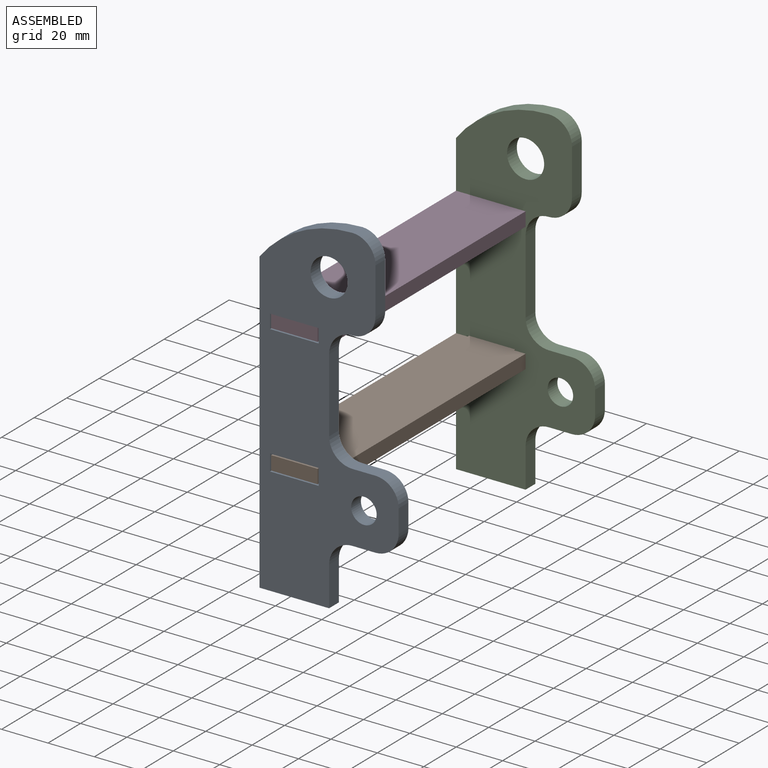
[diagram: assembled view]
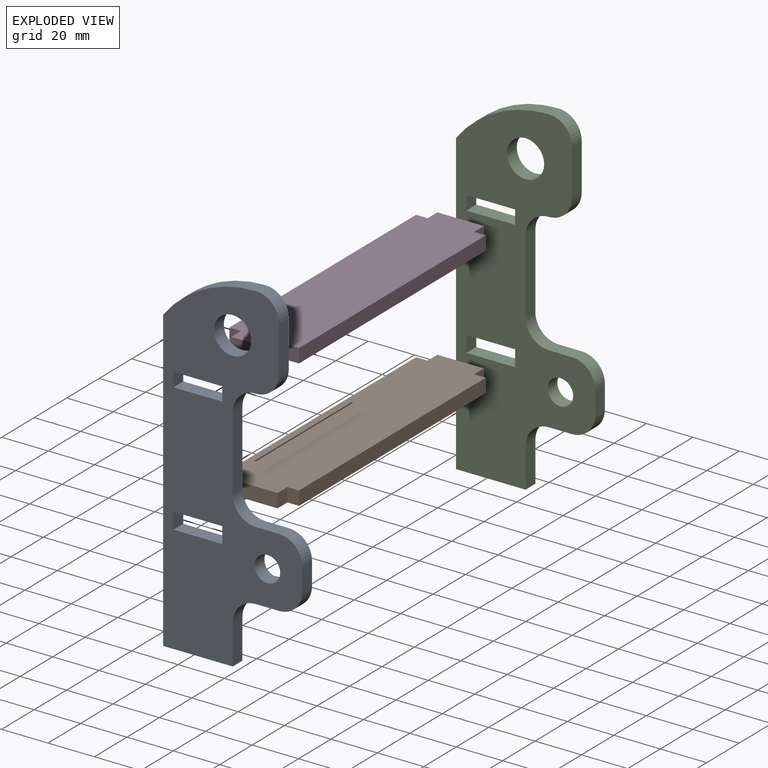
[diagram: exploded view]
GUIDED TOUR — MATED ASSEMBLY (Onshape document 54d74c129638f060a17b37b4, AutoMate assembly 54d74c129638f060a17b37b4_c15cae82bca73bbc953732e4_8736459e0497385a11a47982_default)

This assembly has 4 components, labeled P0..P3 below (a component is one placed occurrence of a part; the same part can appear more than once), held together by 3 mates. A mate is a constraint between two components; its type names the relative motion it leaves free:
  FASTENED — locks the two components together rigidly (no relative motion).
Axis/direction vectors are unit vectors and 'through' points are millimeter coordinates, both in the assembly's world frame.

MATES
  1. FASTENED "Fastened 1": P2 <-> P1, direction (0.000, 1.000, 0.000) through (-154.47, -129.19, -5.41) mm
  2. FASTENED "Fastened 3": P0 <-> P3, direction (0.000, 1.000, 0.000) through (-154.47, -250.19, 49.09) mm
  3. FASTENED "Fastened 2": P3 <-> P2, direction (0.000, 1.000, 0.000) through (-154.47, -129.19, 49.59) mm

ASSEMBLY ORDER
  1. P2 — the base component [order heuristic]
  2. P1 [order heuristic]
  3. P3 [order heuristic]
  4. P0 [order heuristic]
Order-tag legend:
  [order heuristic] — this assembly is geometrically interlocked (no collision-free removal order exists), so components are listed in mate-graph order; insertion feasibility is not verified.

Of the 4 components, 4 carry the full construction recipe — the FeatureScript program that regenerates the part's solid from scratch; the rest are supplied as boundary geometry only.
Each toured component is shown spotlighted twice — in the assembled view, then in the exploded view, where a leader line traces a displaced component back to its assembled socket (saturated green if recipe-attached, orange if geometry-only; every other component desaturated gray) — followed by its recipe or geometry summary and the mates that hold it.
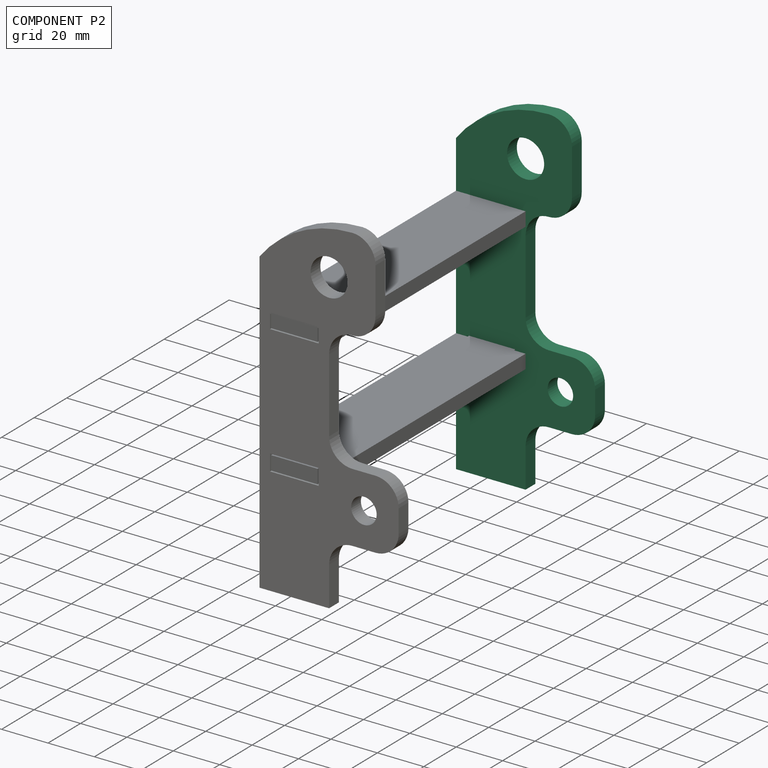
[diagram: component P2 — assembled]
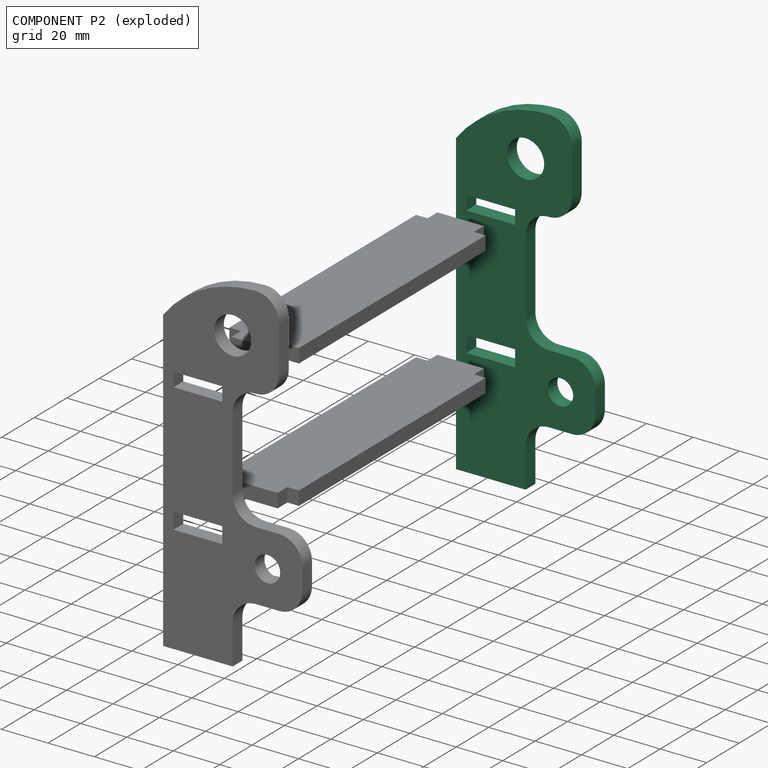
[diagram: component P2 — exploded]
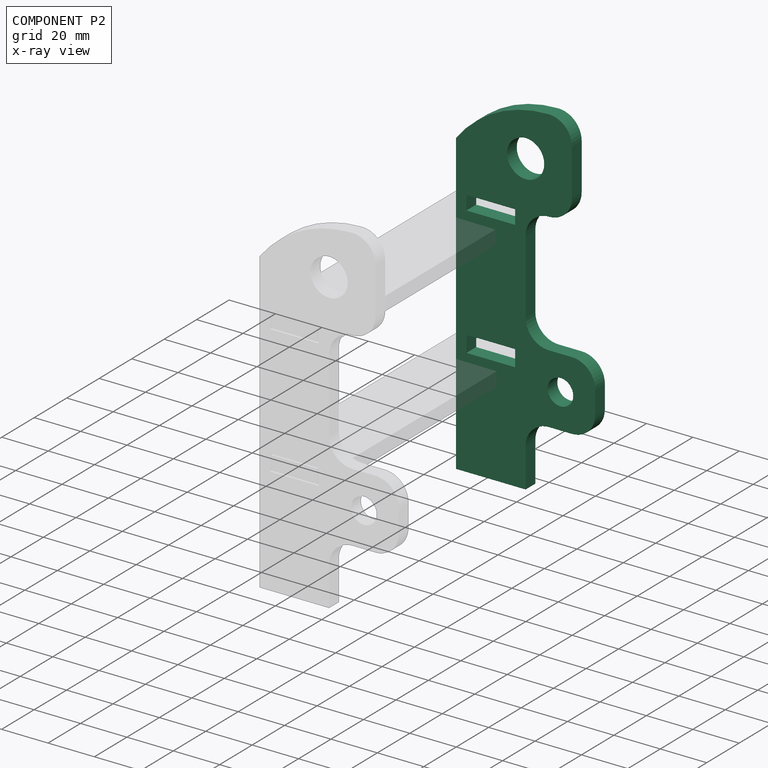
[diagram: component P2 — x-ray view]
COMPONENT P2 — same part as P0 (CADFS 00991045); its construction recipe is shown at P0.
Held by: FASTENED mate "Fastened 1" to P1; FASTENED mate "Fastened 2" to P3.
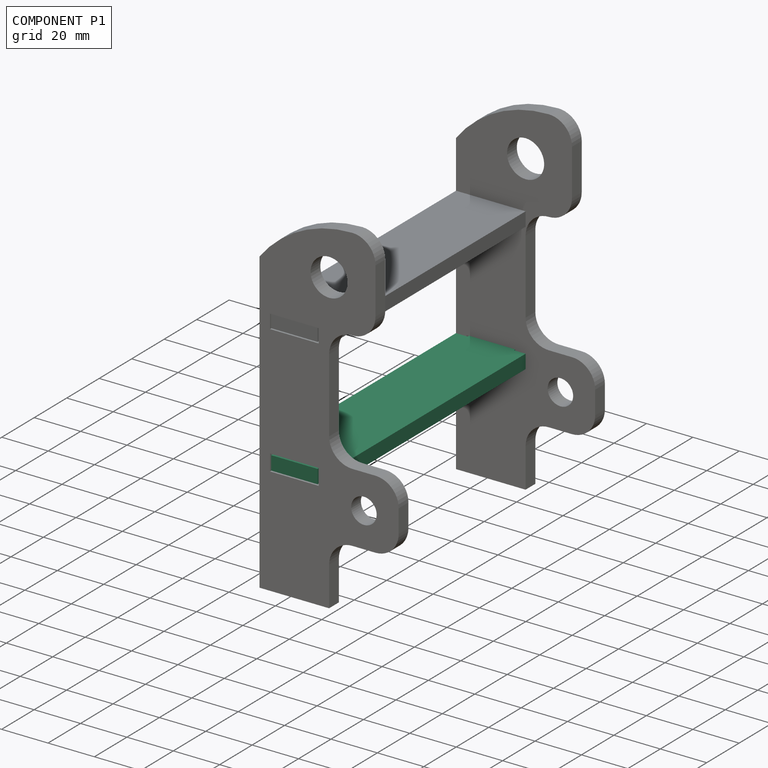
[diagram: component P1 — assembled]
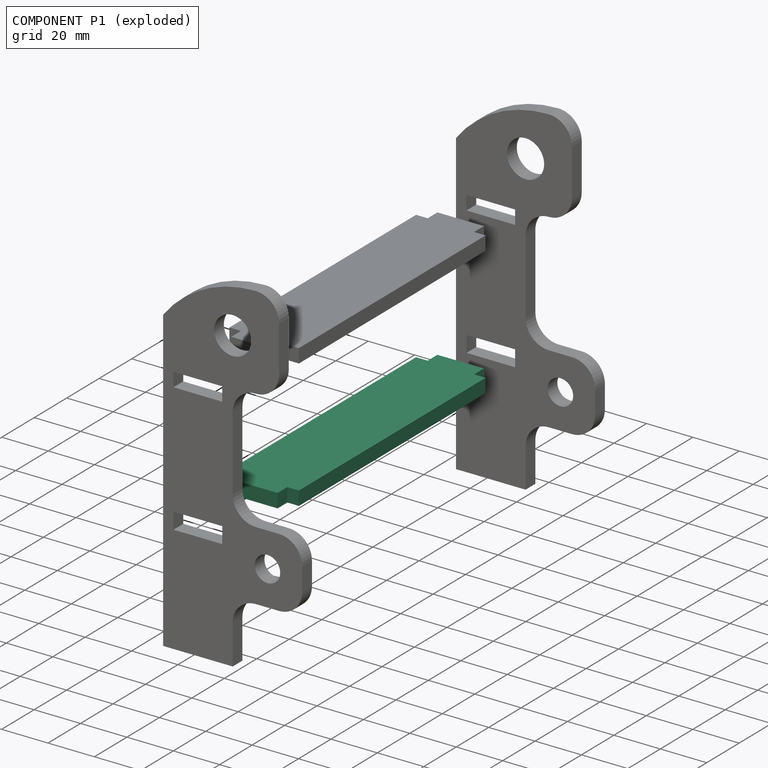
[diagram: component P1 — exploded]
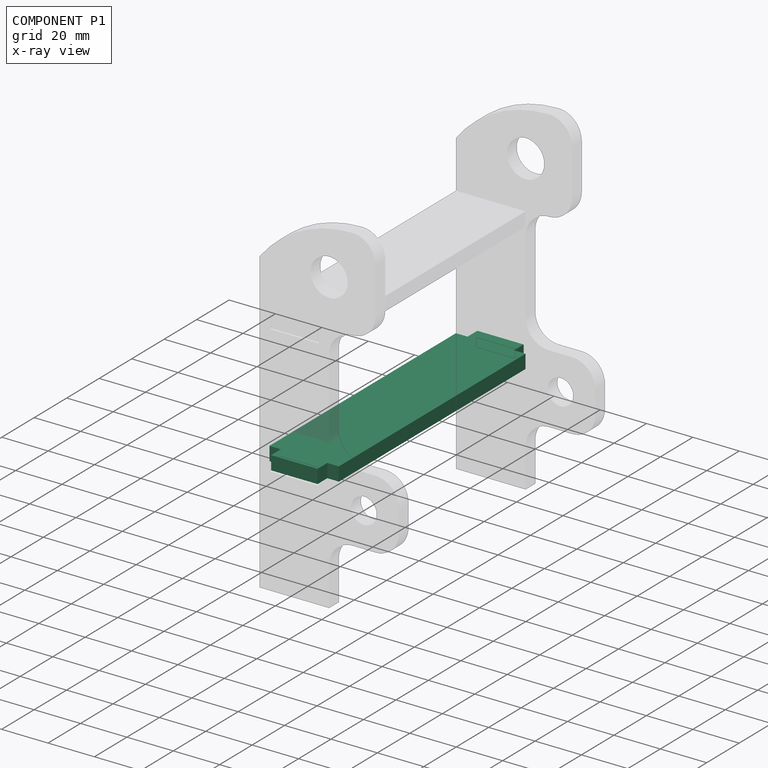
[diagram: component P1 — x-ray view]
COMPONENT P1 — recipe-attached (CADFS 00991043, mesh-verified: the recipe's output STEP matches this component's geometry to below the mesh-comparison resolution (tessellation chordal tolerance ~0.196 mm)).
Held by: FASTENED mate "Fastened 1" to P2.
Construction recipe (FeatureScript — the CAD program that rebuilds this solid; sketch coordinates are in the units given by the * unit suffixes, e.g. mm):

FeatureScript 1511;
import(path : "onshape/std/geometry.fs", version : "1511.0");
import(path : "onshape/std/common.fs", version : "1511.0");
const mm = millimeter;
const VERTEX = EntityType.VERTEX;
const EDGE = EntityType.EDGE;
const FACE = EntityType.FACE;
const BODY = EntityType.BODY;
function v(x, y){return vector(x, y);}
function OD(order){return orderDisambiguation(order);}
function OSD(set){return originalSetDisambiguation(set);}
function TD(topology){return topologyDisambiguation(topology);}
function TDD(query){return trueDependencyDisambiguation(query);}
function sQuery(a, b, c) {return sketchEntityQuery(a, b, c);}

annotation { "Feature Type Name" : "Feature", "Feature Type Description" : "" }
export const myFeature = defineFeature(function(context is Context, id is Id, definition is map)
    precondition{}
    {
        {
            var Q0;
            Q0=qCreatedBy(makeId("Top.planeOp"),FACE);
            var sketch = newSketch(context, id + "F0", { "sketchPlane" : qUnion([Q0])});
            skLineSegment(sketch, "E0.bottom", {"start": v(-34.2, -50.27) * mm, "end": v(-14.2, -50.27) * mm});
            skLineSegment(sketch, "E0.top", {"start": v(-34.2, 76.73) * mm, "end": v(-14.2, 76.73) * mm});
            skLineSegment(sketch, "E0.left", {"start": v(-39.2, -44.27) * mm, "end": v(-39.2, 70.73) * mm});
            skLineSegment(sketch, "E0.right", {"start": v(-9.2, -44.27) * mm, "end": v(-9.2, 70.73) * mm});
            skLineSegment(sketch, "E1", {"start": v(-34.2, -50.27) * mm, "end": v(-34.2, -44.27) * mm});
            skLineSegment(sketch, "E2", {"start": v(-34.2, -44.27) * mm, "end": v(-39.2, -44.27) * mm});
            skLineSegment(sketch, "E3.top", {"start": v(-39.2, 70.73) * mm, "end": v(-34.2, 70.73) * mm});
            skLineSegment(sketch, "E3.right", {"start": v(-34.2, 76.73) * mm, "end": v(-34.2, 70.73) * mm});
            skLineSegment(sketch, "E4.top", {"start": v(-9.2, 70.73) * mm, "end": v(-14.2, 70.73) * mm});
            skLineSegment(sketch, "E4.right", {"start": v(-14.2, 76.73) * mm, "end": v(-14.2, 70.73) * mm});
            skLineSegment(sketch, "E5.top", {"start": v(-9.2, -44.27) * mm, "end": v(-14.2, -44.27) * mm});
            skLineSegment(sketch, "E5.right", {"start": v(-14.2, -50.27) * mm, "end": v(-14.2, -44.27) * mm});
            skPoint(sketch, "E6.orphan", {"position": v(-39.2, -50.27) * mm});
            skSolve(sketch);
        }
        {
            var Q0;
            Q0 = qSketchRegion(id + "F0", true);
            extrude(context, id + "F1", {"entities" : qUnion([Q0]), "depth" : 6 * mm, "offsetDistance" : 25 * mm});
        }
    });
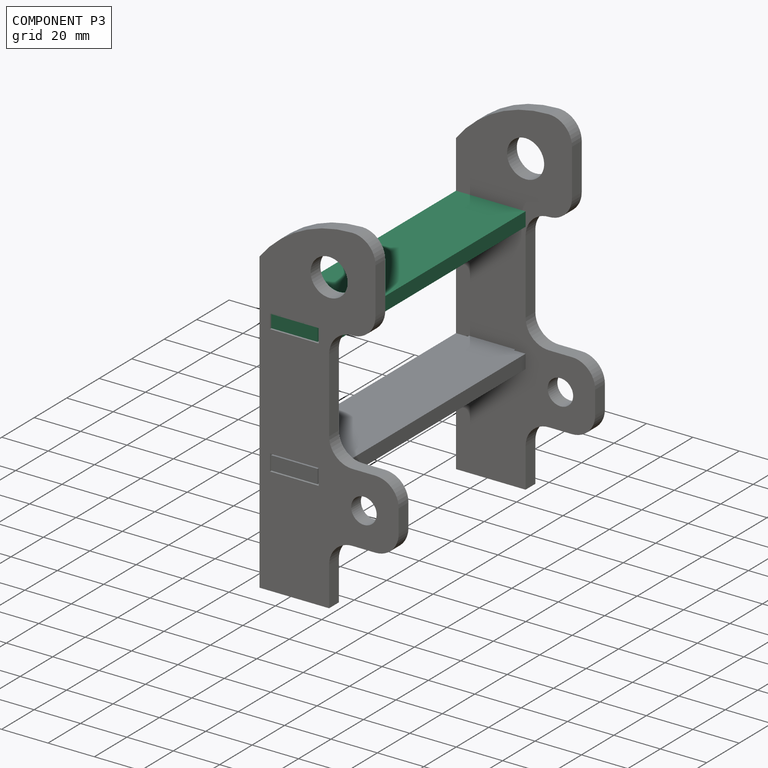
[diagram: component P3 — assembled]
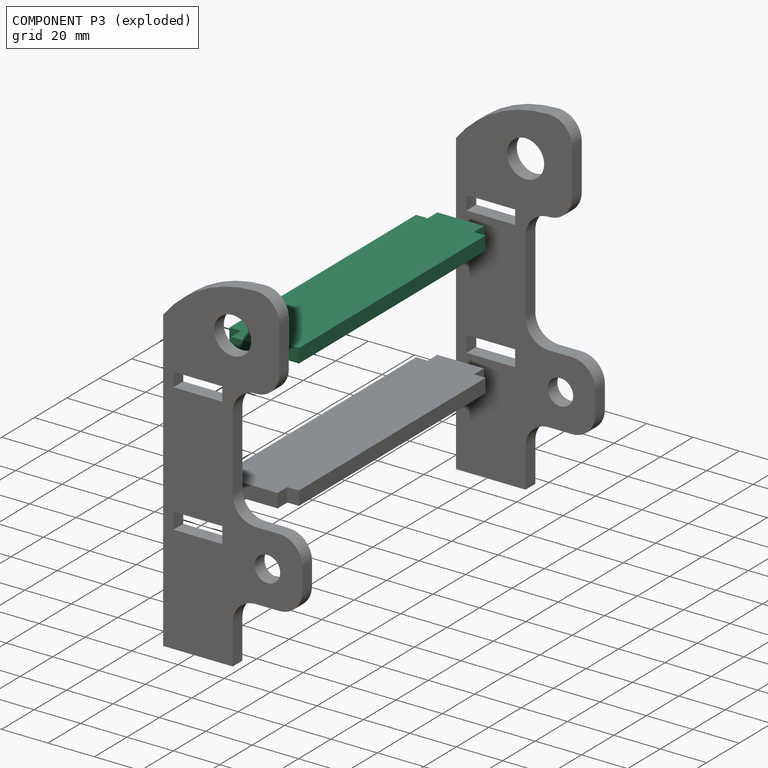
[diagram: component P3 — exploded]
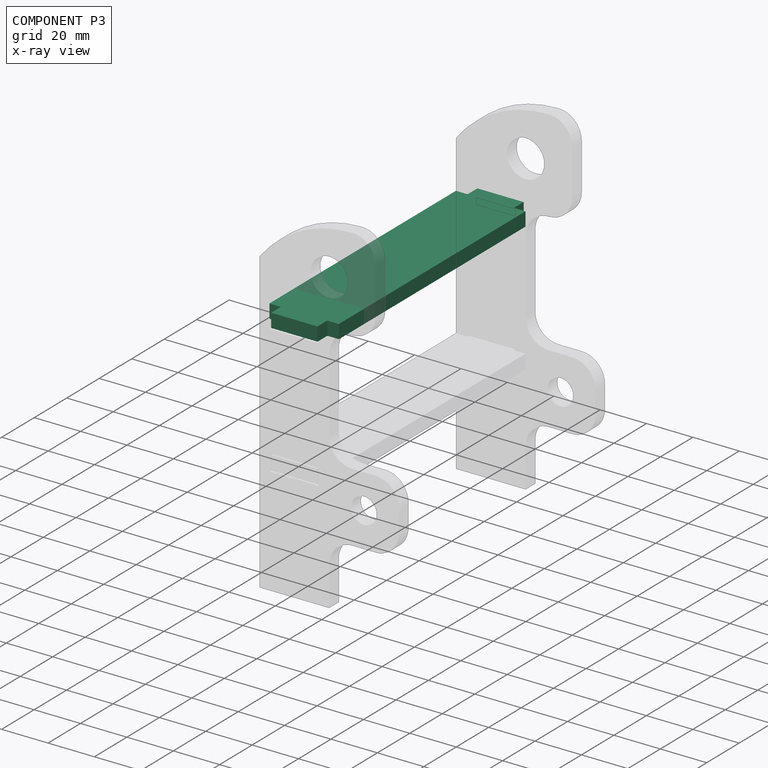
[diagram: component P3 — x-ray view]
COMPONENT P3 — same part as P1 (CADFS 00991043); its construction recipe is shown at P1.
Held by: FASTENED mate "Fastened 3" to P0; FASTENED mate "Fastened 2" to P2.
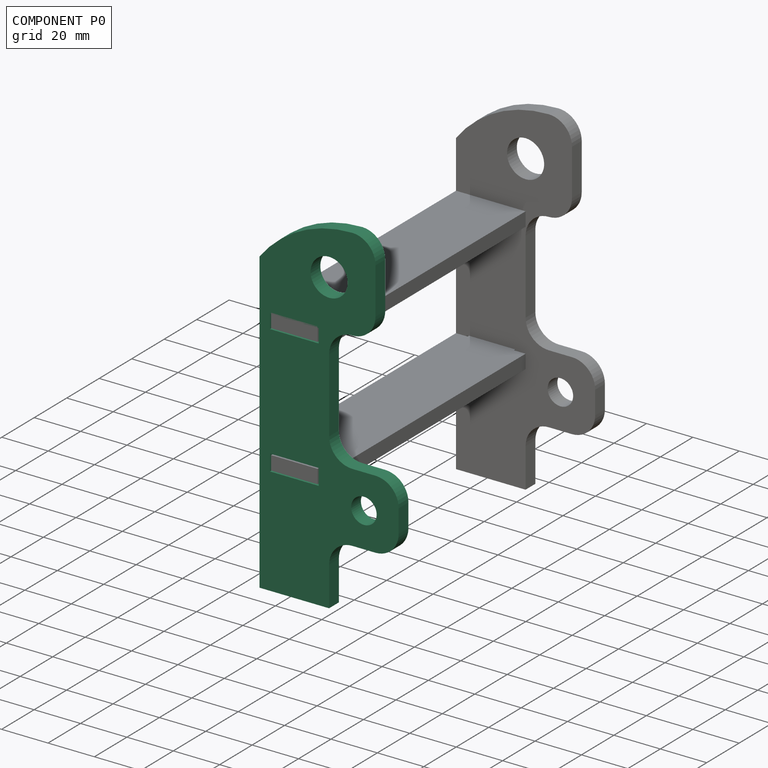
[diagram: component P0 — assembled]
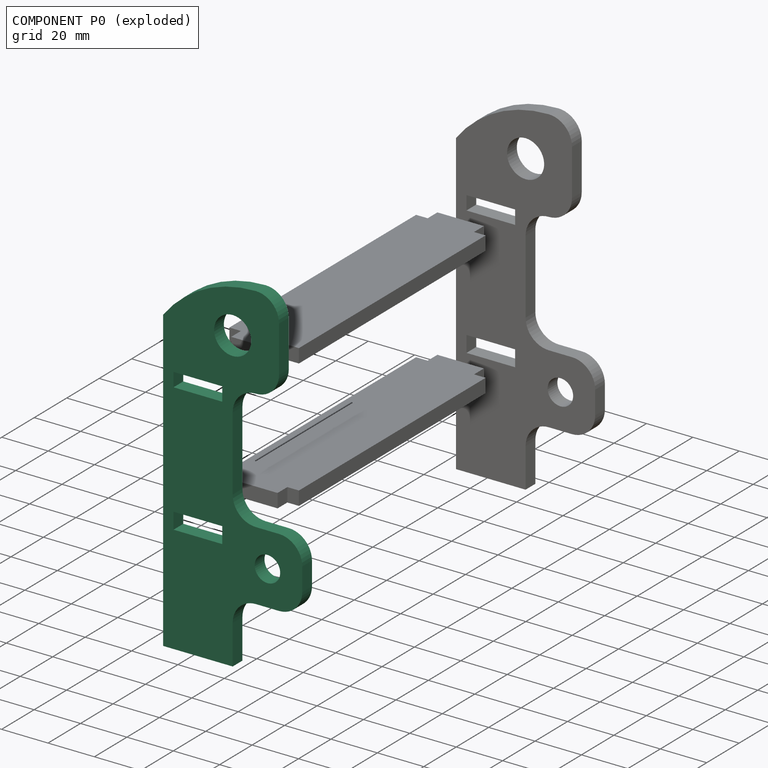
[diagram: component P0 — exploded]
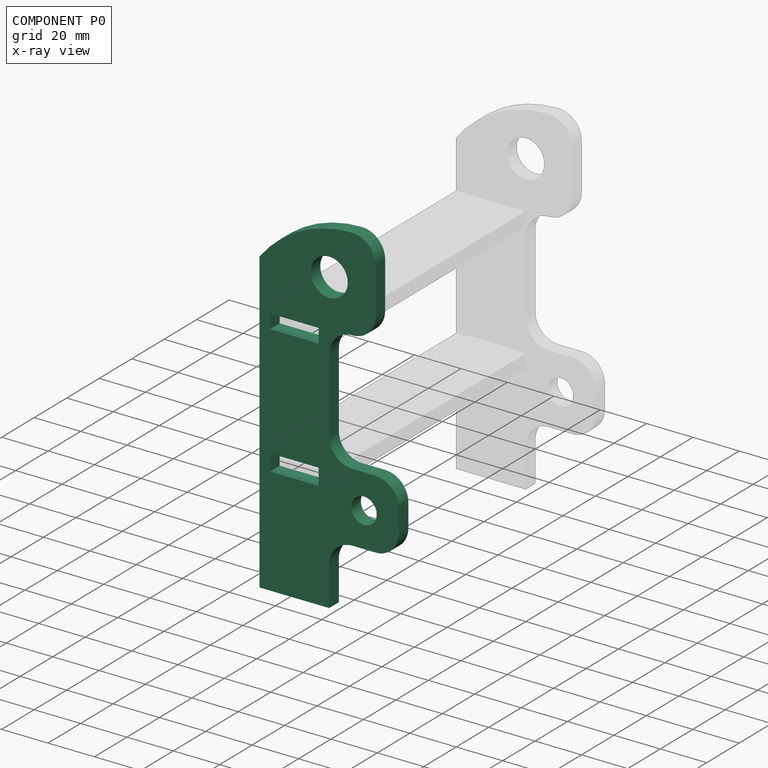
[diagram: component P0 — x-ray view]
COMPONENT P0 — recipe-attached (CADFS 00991045, mesh-verified: the recipe's output STEP matches this component's geometry to below the mesh-comparison resolution (tessellation chordal tolerance ~0.241 mm)).
Held by: FASTENED mate "Fastened 3" to P3.
Construction recipe (FeatureScript — the CAD program that rebuilds this solid; sketch coordinates are in the units given by the * unit suffixes, e.g. mm):

FeatureScript 1511;
import(path : "onshape/std/geometry.fs", version : "1511.0");
import(path : "onshape/std/common.fs", version : "1511.0");
const mm = millimeter;
const VERTEX = EntityType.VERTEX;
const EDGE = EntityType.EDGE;
const FACE = EntityType.FACE;
const BODY = EntityType.BODY;
function v(x, y){return vector(x, y);}
function OD(order){return orderDisambiguation(order);}
function OSD(set){return originalSetDisambiguation(set);}
function TD(topology){return topologyDisambiguation(topology);}
function TDD(query){return trueDependencyDisambiguation(query);}
function sQuery(a, b, c) {return sketchEntityQuery(a, b, c);}

annotation { "Feature Type Name" : "Feature", "Feature Type Description" : "" }
export const myFeature = defineFeature(function(context is Context, id is Id, definition is map)
    precondition{}
    {
        {
            var Q0;
            Q0=qCreatedBy(makeId("Front.planeOp"),FACE);
            var sketch = newSketch(context, id + "F0", { "sketchPlane" : qUnion([Q0])});
            skLineSegment(sketch, "E0.top", {"start": v(-59.44, -101.5) * mm, "end": v(-19.44, -101.5) * mm});
            skLineSegment(sketch, "E0.left", {"start": v(-59.44, 6.79) * mm, "end": v(-59.44, -101.5) * mm});
            skLineSegment(sketch, "E1", {"start": v(-59.44, -101.5) * mm, "end": v(-19.44, -101.5) * mm, "construction": true});
            skLineSegment(sketch, "E2", {"start": v(-4.44, -101.5) * mm, "end": v(-4.44, -53.5) * mm, "construction": true});
            skCircle(sketch, "E3", {"center": v(-4.44, -53.5) * mm, "radius": 5.5 * mm});
            skLineSegment(sketch, "E4", {"start": v(-4.44, -38.5) * mm, "end": v(-9.44, -38.5) * mm});
            skLineSegment(sketch, "E5", {"start": v(-19.44, -101.5) * mm, "end": v(-19.44, 33.5) * mm, "construction": true});
            skCircle(sketch, "E6", {"center": v(-19.44, 33.5) * mm, "radius": 8 * mm});
            skLineSegment(sketch, "E7", {"start": v(-19.44, 33.5) * mm, "end": v(0.56, 33.5) * mm, "construction": true});
            skLineSegment(sketch, "E8", {"start": v(0.56, 33.5) * mm, "end": v(0.56, 43.5) * mm});
            skLineSegment(sketch, "E9", {"start": v(0.56, 33.5) * mm, "end": v(0.56, 23.5) * mm});
            skLineSegment(sketch, "E10", {"start": v(-4.44, -53.5) * mm, "end": v(10.56, -53.5) * mm, "construction": true});
            skLineSegment(sketch, "E11", {"start": v(10.56, -53.5) * mm, "end": v(10.56, -48.5) * mm});
            skLineSegment(sketch, "E12", {"start": v(0.56, -38.5) * mm, "end": v(-4.44, -38.5) * mm});
            skLineSegment(sketch, "E13", {"start": v(-19.44, -28.5) * mm, "end": v(-19.44, 3.5) * mm});
            skLineSegment(sketch, "E14", {"start": v(-9.44, 13.5) * mm, "end": v(-9.44, 13.5) * mm});
            skLineSegment(sketch, "E15", {"start": v(10.56, -53.5) * mm, "end": v(10.56, -58.5) * mm});
            skLineSegment(sketch, "E16", {"start": v(0.56, -68.5) * mm, "end": v(-9.44, -68.5) * mm});
            skLineSegment(sketch, "E17", {"start": v(-19.44, -78.5) * mm, "end": v(-19.44, -101.5) * mm});
            skPoint(sketch, "E18.visualSharp", {"position": v(10.56, -68.5) * mm});
            skArc(sketch, "E18.filletArc", {"start": v(0.56, -68.5) * mm, "mid": v(7.63, -65.56) * mm, "end": v(10.56, -58.5) * mm});
            skPoint(sketch, "E19.visualSharp", {"position": v(10.56, -38.5) * mm});
            skArc(sketch, "E19.filletArc", {"start": v(10.56, -48.5) * mm, "mid": v(7.63, -41.42) * mm, "end": v(0.56, -38.5) * mm});
            skPoint(sketch, "E20.visualSharp", {"position": v(-19.44, -38.5) * mm});
            skArc(sketch, "E20.filletArc", {"start": v(-19.44, -28.5) * mm, "mid": v(-16.5, -35.56) * mm, "end": v(-9.44, -38.5) * mm});
            skPoint(sketch, "E21.visualSharp", {"position": v(-19.44, -68.5) * mm});
            skArc(sketch, "E21.filletArc", {"start": v(-9.44, -68.5) * mm, "mid": v(-16.5, -71.42) * mm, "end": v(-19.44, -78.5) * mm});
            skPoint(sketch, "E22.visualSharp", {"position": v(-19.44, 13.5) * mm});
            skArc(sketch, "E22.filletArc", {"start": v(-9.44, 13.5) * mm, "mid": v(-16.5, 10.58) * mm, "end": v(-19.44, 3.5) * mm});
            skPoint(sketch, "E23.visualSharp", {"position": v(0.56, 13.5) * mm});
            skArc(sketch, "E23.filletArc", {"start": v(-9.44, 13.5) * mm, "mid": v(-2.37, 16.44) * mm, "end": v(0.56, 23.5) * mm});
            skPoint(sketch, "E24.visualSharp", {"position": v(0.56, 53.5) * mm});
            skArc(sketch, "E24.filletArc", {"start": v(0.56, 43.5) * mm, "mid": v(-2.37, 50.58) * mm, "end": v(-9.44, 53.5) * mm});
            skPoint(sketch, "E25.visualSharp", {"position": v(-59.44, 53.5) * mm});
            skArc(sketch, "E26", {"start": v(-9.44, 53.5) * mm, "mid": v(-46.05, 37.61) * mm, "end": v(-59.44, 0) * mm});
            skSolve(sketch);
        }
        {
            var Q0;
            {var subQ0=sQuery(id+"F0.wireOp",EDGE,"E0.top");Q0=makeQuery(id+"F0.imprint","IMPRINT",FACE,{"disambiguationData":[TD([[makeQuery(id+"F0.imprint","IMPRINT",EDGE,{"derivedFrom":subQ0}),1.0]])]});}
            extrude(context, id + "F1", {"entities" : qUnion([Q0]), "depth" : 6 * mm, "offsetDistance" : 25 * mm});
        }
        {
            var Q0;
            Q0=makeQuery(id+"F1.opExtrude","CAP_FACE",FACE,{"disambiguationData":[OSD([sQuery(id+"F0.wireOp",EDGE,"E0.top"),sQuery(id+"F0.wireOp",EDGE,"E0.left"),sQuery(id+"F0.wireOp",EDGE,"E3"),sQuery(id+"F0.wireOp",EDGE,"E4"),sQuery(id+"F0.wireOp",EDGE,"E6"),sQuery(id+"F0.wireOp",EDGE,"E8"),sQuery(id+"F0.wireOp",EDGE,"E9"),sQuery(id+"F0.wireOp",EDGE,"E11"),sQuery(id+"F0.wireOp",EDGE,"E12"),sQuery(id+"F0.wireOp",EDGE,"E13"),sQuery(id+"F0.wireOp",EDGE,"E15"),sQuery(id+"F0.wireOp",EDGE,"E16"),sQuery(id+"F0.wireOp",EDGE,"E17"),sQuery(id+"F0.wireOp",EDGE,"E18.filletArc"),sQuery(id+"F0.wireOp",EDGE,"E19.filletArc"),sQuery(id+"F0.wireOp",EDGE,"E20.filletArc"),sQuery(id+"F0.wireOp",EDGE,"E21.filletArc"),sQuery(id+"F0.wireOp",EDGE,"E22.filletArc"),sQuery(id+"F0.wireOp",EDGE,"E23.filletArc"),sQuery(id+"F0.wireOp",EDGE,"E24.filletArc"),sQuery(id+"F0.wireOp",EDGE,"E26")])],"isStart":false});
            var sketch = newSketch(context, id + "F2", { "sketchPlane" : qUnion([Q0])});
            skLineSegment(sketch, "E27", {"start": v(-59.44, -101.5) * mm, "end": v(-49.44, -101.5) * mm});
            skLineSegment(sketch, "E28", {"start": v(-49.44, -101.5) * mm, "end": v(-49.44, 33.59) * mm});
            skSolve(sketch);
        }
        {
            var Q0;
            Q0=makeQuery(id+"F2.imprint","IMPRINT",FACE,{"disambiguationData":[TD([[makeQuery(id+"F2.imprint","IMPRINT",EDGE,{"derivedFrom":sQuery(id+"F2.wireOp",EDGE,"E27")}),1.0]])]});
            extrude(context, id + "F3", {"entities" : qUnion([Q0]), "operationType" : NewBodyOperationType.REMOVE, "oppositeDirection" : true, "depth" : 25 * mm, "offsetDistance" : 25 * mm});
        }
        {
            var Q0;
            Q0=makeQuery(id+"F1.opExtrude","CAP_FACE",FACE,{"disambiguationData":[OSD([sQuery(id+"F0.wireOp",EDGE,"E0.top"),sQuery(id+"F0.wireOp",EDGE,"E0.left"),sQuery(id+"F0.wireOp",EDGE,"E3"),sQuery(id+"F0.wireOp",EDGE,"E4"),sQuery(id+"F0.wireOp",EDGE,"E6"),sQuery(id+"F0.wireOp",EDGE,"E8"),sQuery(id+"F0.wireOp",EDGE,"E9"),sQuery(id+"F0.wireOp",EDGE,"E11"),sQuery(id+"F0.wireOp",EDGE,"E12"),sQuery(id+"F0.wireOp",EDGE,"E13"),sQuery(id+"F0.wireOp",EDGE,"E15"),sQuery(id+"F0.wireOp",EDGE,"E16"),sQuery(id+"F0.wireOp",EDGE,"E17"),sQuery(id+"F0.wireOp",EDGE,"E18.filletArc"),sQuery(id+"F0.wireOp",EDGE,"E19.filletArc"),sQuery(id+"F0.wireOp",EDGE,"E20.filletArc"),sQuery(id+"F0.wireOp",EDGE,"E21.filletArc"),sQuery(id+"F0.wireOp",EDGE,"E22.filletArc"),sQuery(id+"F0.wireOp",EDGE,"E23.filletArc"),sQuery(id+"F0.wireOp",EDGE,"E24.filletArc"),sQuery(id+"F0.wireOp",EDGE,"E26")])],"isStart":false});
            var sketch = newSketch(context, id + "F4", { "sketchPlane" : qUnion([Q0])});
            skLineSegment(sketch, "E29", {"start": v(-49.44, -101.5) * mm, "end": v(-49.44, -95.5) * mm});
            skLineSegment(sketch, "E30", {"start": v(-49.44, -95.5) * mm, "end": v(-19.44, -95.5) * mm});
            skSolve(sketch);
        }
        {
            var Q0;
            Q0=makeQuery(id+"F4.imprint","IMPRINT",FACE,{"disambiguationData":[TD([[makeQuery(id+"F4.imprint","IMPRINT",EDGE,{"derivedFrom":sQuery(id+"F4.wireOp",EDGE,"E29")}),-1.0]])]});
            extrude(context, id + "F5", {"entities" : qUnion([Q0]), "operationType" : NewBodyOperationType.REMOVE, "oppositeDirection" : true, "depth" : 25 * mm, "offsetDistance" : 25 * mm});
        }
        {
            var Q0;
            Q0=makeQuery(id+"F1.opExtrude","CAP_FACE",FACE,{"disambiguationData":[OSD([sQuery(id+"F0.wireOp",EDGE,"E0.top"),sQuery(id+"F0.wireOp",EDGE,"E0.left"),sQuery(id+"F0.wireOp",EDGE,"E3"),sQuery(id+"F0.wireOp",EDGE,"E4"),sQuery(id+"F0.wireOp",EDGE,"E6"),sQuery(id+"F0.wireOp",EDGE,"E8"),sQuery(id+"F0.wireOp",EDGE,"E9"),sQuery(id+"F0.wireOp",EDGE,"E11"),sQuery(id+"F0.wireOp",EDGE,"E12"),sQuery(id+"F0.wireOp",EDGE,"E13"),sQuery(id+"F0.wireOp",EDGE,"E15"),sQuery(id+"F0.wireOp",EDGE,"E16"),sQuery(id+"F0.wireOp",EDGE,"E17"),sQuery(id+"F0.wireOp",EDGE,"E18.filletArc"),sQuery(id+"F0.wireOp",EDGE,"E19.filletArc"),sQuery(id+"F0.wireOp",EDGE,"E20.filletArc"),sQuery(id+"F0.wireOp",EDGE,"E21.filletArc"),sQuery(id+"F0.wireOp",EDGE,"E22.filletArc"),sQuery(id+"F0.wireOp",EDGE,"E23.filletArc"),sQuery(id+"F0.wireOp",EDGE,"E24.filletArc"),sQuery(id+"F0.wireOp",EDGE,"E26")])],"isStart":false});
            var sketch = newSketch(context, id + "F6", { "sketchPlane" : qUnion([Q0])});
            skLineSegment(sketch, "E31", {"start": v(-34.44, -95.5) * mm, "end": v(-34.44, -45.5) * mm, "construction": true});
            skLineSegment(sketch, "E32", {"start": v(-34.44, -45.5) * mm, "end": v(-34.44, 9.5) * mm, "construction": true});
            skLineSegment(sketch, "E33.bottom", {"start": v(-23.94, -49) * mm, "end": v(-44.94, -49) * mm});
            skLineSegment(sketch, "E33.top", {"start": v(-23.94, -42) * mm, "end": v(-44.94, -42) * mm});
            skLineSegment(sketch, "E33.left", {"start": v(-23.94, -49) * mm, "end": v(-23.94, -42) * mm});
            skLineSegment(sketch, "E33.right", {"start": v(-44.94, -49) * mm, "end": v(-44.94, -42) * mm});
            skPoint(sketch, "E33.middle", {"position": v(-34.44, -45.5) * mm});
            skLineSegment(sketch, "E34.bottom", {"start": v(-23.94, 6.5) * mm, "end": v(-44.94, 6.5) * mm});
            skLineSegment(sketch, "E34.top", {"start": v(-23.94, 12.5) * mm, "end": v(-44.94, 12.5) * mm});
            skLineSegment(sketch, "E34.left", {"start": v(-23.94, 6.5) * mm, "end": v(-23.94, 12.5) * mm});
            skLineSegment(sketch, "E34.right", {"start": v(-44.94, 6.5) * mm, "end": v(-44.94, 12.5) * mm});
            skPoint(sketch, "E34.middle", {"position": v(-34.44, 9.5) * mm});
            skSolve(sketch);
        }
        {
            var Q0;
            Q0 = qSketchRegion(id + "F6", true);
            extrude(context, id + "F7", {"entities" : qUnion([Q0]), "operationType" : NewBodyOperationType.REMOVE, "oppositeDirection" : true, "depth" : 25 * mm, "offsetDistance" : 25 * mm});
        }
    });
PROVENANCE & LICENSES
Assembly (occurrences, transforms, mates, per-part STEP geometry): AutoMate dataset, Zenodo record 7776208, CC0.
Construction recipes: CADFS (HuggingFace VladPyatov/CADFS, CC-BY-4.0, layered over the ABC dataset), FeatureScript reconstruction programs keyed by ABC model id.
Join: ABC meta listings map ABC model id -> Onshape documentId; within a shared document, parts are matched by geometric signature (bounding-box dims + volume at 0.1% relative tolerance, exact B-rep face/solid counts).
Verification: 4 of this assembly's 4 components carry a recipe attachment, and every attachment is mesh-verified: the CADFS STEP and the AutoMate member STEP were compared as meshes in their shared local frame (symmetric sampled-point-to-mesh distance); worst across the 4 attachments: below the mesh-comparison resolution (tessellation chordal tolerance ~0.241 mm) on a 161 mm part.
Renders: orthographic iso camera (az 35 / el 25); the floor grid conveys scale (grid pitch printed in each image; no ruler). In the exploded view each component is displaced by its stored offset vector: the offsets alone carry the explosion direction (mate normal/axis signs are not orientation cues and do not encode it), and separation distances are assigned per mate-chain, not proportionally to assembly-order depth.
